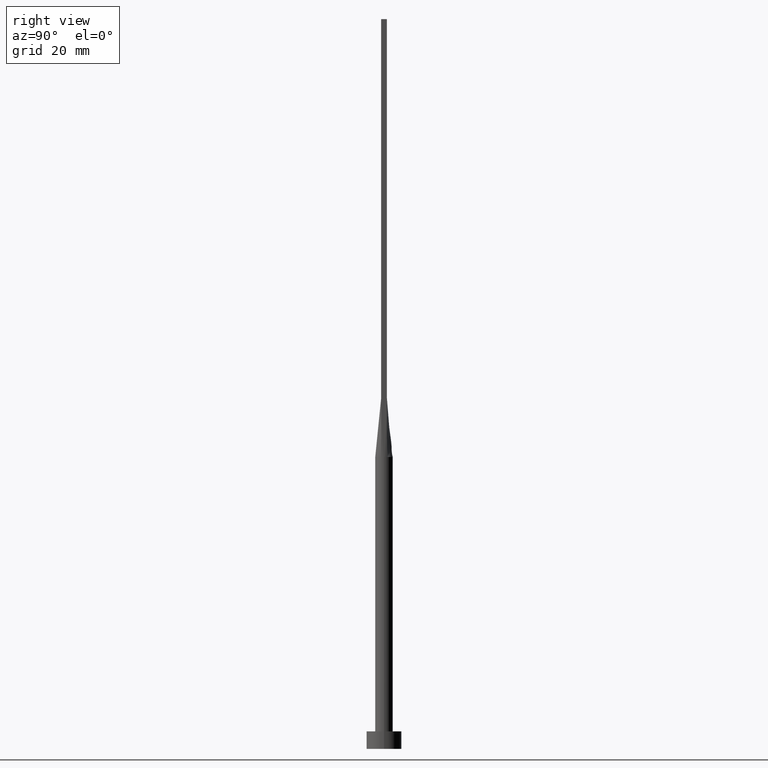
[diagram: clean part render]
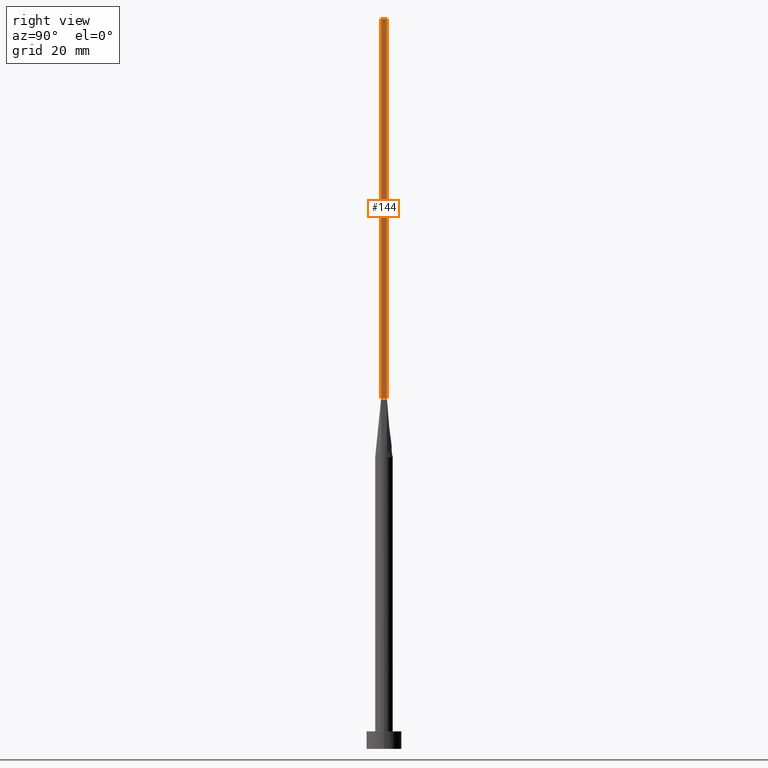
[diagram: same view with one face highlighted and labeled with its STEP entity id]
A machine part, right view. The second image highlights one B-rep face of the part: STEP entity #144.
In plain terms, the highlighted planar face has unit normal (-1, -0, 0).
Its self-contained STEP definition (entity closure, byte-faithful):
#2 = ORIENTED_EDGE ( 'NONE', *, *, #560, .T. ) ;
#46 = LINE ( 'NONE', #269, #526 ) ;
#49 = LINE ( 'NONE', #316, #309 ) ;
#62 = VECTOR ( 'NONE', #488, 1000.000000000000000 ) ;
#92 = CARTESIAN_POINT ( 'NONE',  ( 1.399999999999999689, 0.5000000000000002220, 60.00000000000000711 ) ) ;
#93 = DIRECTION ( 'NONE',  ( 2.168404344971008621E-16, -1.000000000000000000, 0.000000000000000000 ) ) ;
#101 = DIRECTION ( 'NONE',  ( -0.000000000000000000, -0.000000000000000000, -1.000000000000000000 ) ) ;
#140 = ORIENTED_EDGE ( 'NONE', *, *, #517, .T. ) ;
#144 = ADVANCED_FACE ( 'NONE', ( #503 ), #321, .F. ) ;
#148 = CARTESIAN_POINT ( 'NONE',  ( 1.399999999999999911, -0.4999999999999997780, 60.00000000000000711 ) ) ;
#158 = ORIENTED_EDGE ( 'NONE', *, *, #478, .F. ) ;
#167 = CARTESIAN_POINT ( 'NONE',  ( 1.399999999999999689, 0.5000000000000002220, 60.00000000000000711 ) ) ;
#182 = LINE ( 'NONE', #92, #62 ) ;
#197 = VERTEX_POINT ( 'NONE', #148 ) ;
#208 = VERTEX_POINT ( 'NONE', #490 ) ;
#239 = LINE ( 'NONE', #429, #456 ) ;
#266 = CARTESIAN_POINT ( 'NONE',  ( 1.399999999999999911, -0.4999999999999997780, 125.0000000000000000 ) ) ;
#269 = CARTESIAN_POINT ( 'NONE',  ( 1.399999999999999911, -0.4999999999999997780, 125.0000000000000000 ) ) ;
#272 = ORIENTED_EDGE ( 'NONE', *, *, #338, .F. ) ;
#284 = VERTEX_POINT ( 'NONE', #167 ) ;
#309 = VECTOR ( 'NONE', #101, 1000.000000000000000 ) ;
#316 = CARTESIAN_POINT ( 'NONE',  ( 1.399999999999999911, -0.4999999999999997780, 125.0000000000000000 ) ) ;
#321 = PLANE ( 'NONE',  #507 ) ;
#338 = EDGE_CURVE ( 'NONE', #208, #284, #239, .T. ) ;
#346 = DIRECTION ( 'NONE',  ( -0.000000000000000000, -0.000000000000000000, -1.000000000000000000 ) ) ;
#403 = VERTEX_POINT ( 'NONE', #266 ) ;
#406 = DIRECTION ( 'NONE',  ( -2.168404344971008868E-16, 1.000000000000000000, 0.000000000000000000 ) ) ;
#429 = CARTESIAN_POINT ( 'NONE',  ( 1.399999999999999689, 0.5000000000000002220, 125.0000000000000000 ) ) ;
#456 = VECTOR ( 'NONE', #346, 1000.000000000000000 ) ;
#478 = EDGE_CURVE ( 'NONE', #403, #208, #46, .T. ) ;
#488 = DIRECTION ( 'NONE',  ( -2.168404344971008868E-16, 1.000000000000000000, -0.000000000000000000 ) ) ;
#490 = CARTESIAN_POINT ( 'NONE',  ( 1.399999999999999689, 0.5000000000000002220, 125.0000000000000000 ) ) ;
#494 = CARTESIAN_POINT ( 'NONE',  ( 1.399999999999999911, -0.4999999999999997780, 125.0000000000000000 ) ) ;
#499 = DIRECTION ( 'NONE',  ( -1.000000000000000000, -2.168404344971008621E-16, 0.000000000000000000 ) ) ;
#503 = FACE_OUTER_BOUND ( 'NONE', #565, .T. ) ;
#507 = AXIS2_PLACEMENT_3D ( 'NONE', #494, #499, #93 ) ;
#517 = EDGE_CURVE ( 'NONE', #197, #284, #182, .T. ) ;
#526 = VECTOR ( 'NONE', #406, 1000.000000000000000 ) ;
#560 = EDGE_CURVE ( 'NONE', #403, #197, #49, .T. ) ;
#565 = EDGE_LOOP ( 'NONE', ( #140, #272, #158, #2 ) ) ;